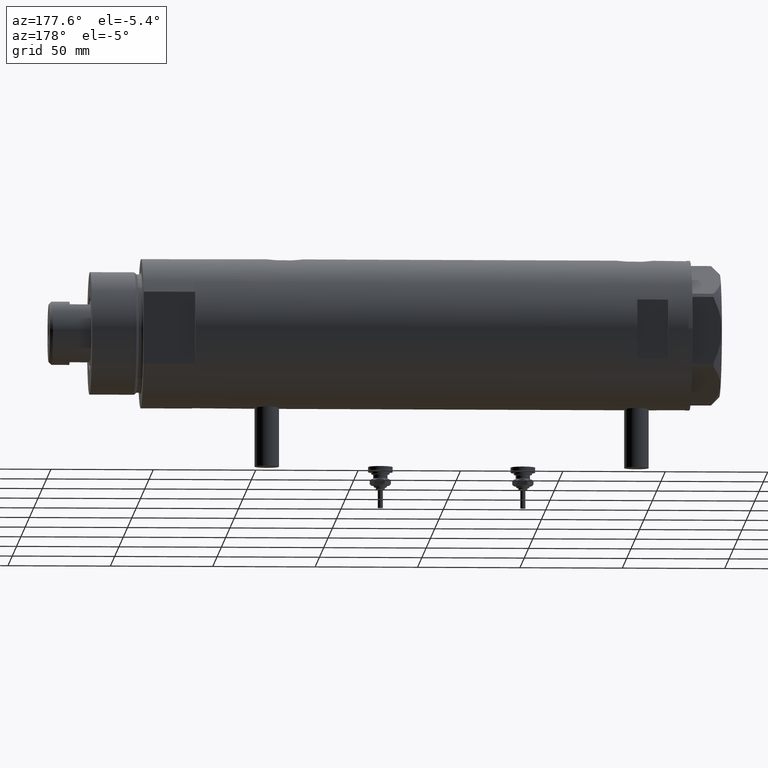
[diagram: clean part render]
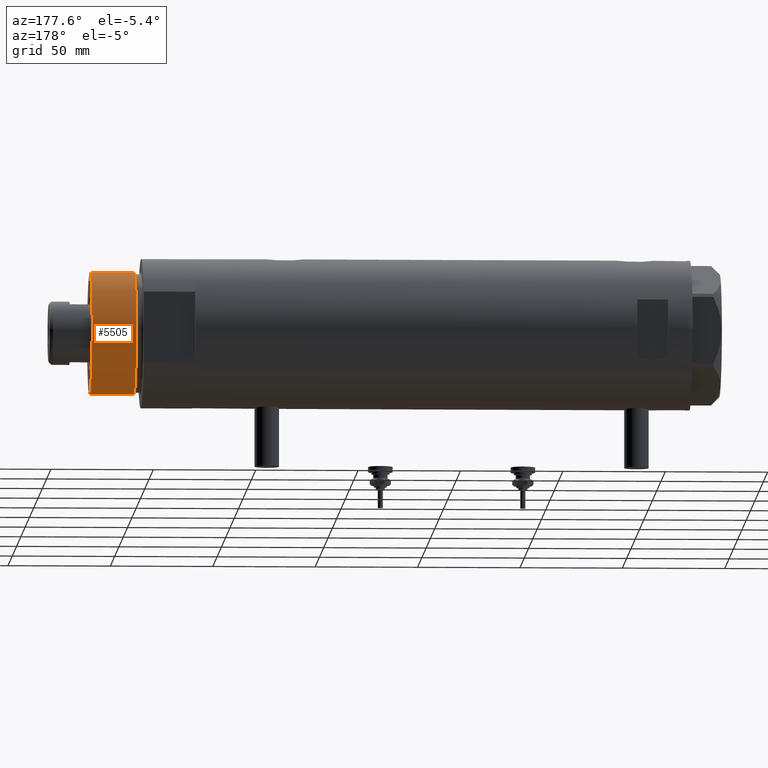
[diagram: same view with one face highlighted and labeled with its STEP entity id]
A machine part, auxiliary view. The second image highlights one B-rep face of the part: STEP entity #5505.
In plain terms, the highlighted cylindrical surface (partial cylindrical patch) has radius 30 mm, axis along (-1, -0, 0).
Its self-contained STEP definition (entity closure, byte-faithful):
#132 = CARTESIAN_POINT ( 'NONE',  ( 30.00000000000000000, 3.673940397442058389E-15, 28.57384048104054486 ) ) ;
#154 = VERTEX_POINT ( 'NONE', #3628 ) ;
#380 = CIRCLE ( 'NONE', #1042, 30.00000000000000000 ) ;
#632 = CARTESIAN_POINT ( 'NONE',  ( 0.000000000000000000, 0.000000000000000000, 50.19999999999999574 ) ) ;
#673 = DIRECTION ( 'NONE',  ( -0.000000000000000000, -0.000000000000000000, -1.000000000000000000 ) ) ;
#833 = CARTESIAN_POINT ( 'NONE',  ( 30.00000000000000000, 3.673940397442058389E-15, 50.19999999999999574 ) ) ;
#1042 = AXIS2_PLACEMENT_3D ( 'NONE', #4285, #4832, #1598 ) ;
#1063 = AXIS2_PLACEMENT_3D ( 'NONE', #5264, #673, #4414 ) ;
#1065 = EDGE_LOOP ( 'NONE', ( #2960, #1161, #3092, #2927 ) ) ;
#1161 = ORIENTED_EDGE ( 'NONE', *, *, #4653, .T. ) ;
#1220 = AXIS2_PLACEMENT_3D ( 'NONE', #632, #2460, #3387 ) ;
#1350 = LINE ( 'NONE', #833, #4791 ) ;
#1426 = VERTEX_POINT ( 'NONE', #3889 ) ;
#1552 = EDGE_CURVE ( 'NONE', #1426, #3922, #3785, .T. ) ;
#1598 = DIRECTION ( 'NONE',  ( 1.000000000000000000, 0.000000000000000000, 0.000000000000000000 ) ) ;
#2222 = DIRECTION ( 'NONE',  ( -0.000000000000000000, -0.000000000000000000, -1.000000000000000000 ) ) ;
#2422 = CARTESIAN_POINT ( 'NONE',  ( -30.00000000000000000, 0.000000000000000000, 50.19999999999999574 ) ) ;
#2460 = DIRECTION ( 'NONE',  ( 0.000000000000000000, 0.000000000000000000, 1.000000000000000000 ) ) ;
#2927 = ORIENTED_EDGE ( 'NONE', *, *, #3764, .F. ) ;
#2960 = ORIENTED_EDGE ( 'NONE', *, *, #1552, .F. ) ;
#3092 = ORIENTED_EDGE ( 'NONE', *, *, #3182, .T. ) ;
#3182 = EDGE_CURVE ( 'NONE', #5718, #154, #380, .T. ) ;
#3387 = DIRECTION ( 'NONE',  ( 1.000000000000000000, 0.000000000000000000, 0.000000000000000000 ) ) ;
#3394 = FACE_OUTER_BOUND ( 'NONE', #1065, .T. ) ;
#3628 = CARTESIAN_POINT ( 'NONE',  ( -30.00000000000000000, 0.000000000000000000, 28.57384048104054486 ) ) ;
#3670 = CARTESIAN_POINT ( 'NONE',  ( -30.00000000000000000, 0.000000000000000000, 50.19999999999999574 ) ) ;
#3764 = EDGE_CURVE ( 'NONE', #3922, #154, #4143, .T. ) ;
#3785 = CIRCLE ( 'NONE', #1220, 30.00000000000000000 ) ;
#3889 = CARTESIAN_POINT ( 'NONE',  ( 30.00000000000000000, 3.673940397442058389E-15, 50.19999999999999574 ) ) ;
#3922 = VERTEX_POINT ( 'NONE', #2422 ) ;
#4143 = LINE ( 'NONE', #3670, #4192 ) ;
#4192 = VECTOR ( 'NONE', #4576, 1000.000000000000000 ) ;
#4285 = CARTESIAN_POINT ( 'NONE',  ( 0.000000000000000000, 0.000000000000000000, 28.57384048104054486 ) ) ;
#4414 = DIRECTION ( 'NONE',  ( -1.000000000000000000, 0.000000000000000000, 0.000000000000000000 ) ) ;
#4576 = DIRECTION ( 'NONE',  ( -0.000000000000000000, -0.000000000000000000, -1.000000000000000000 ) ) ;
#4653 = EDGE_CURVE ( 'NONE', #1426, #5718, #1350, .T. ) ;
#4791 = VECTOR ( 'NONE', #2222, 1000.000000000000000 ) ;
#4832 = DIRECTION ( 'NONE',  ( -0.000000000000000000, -0.000000000000000000, 1.000000000000000000 ) ) ;
#5230 = CYLINDRICAL_SURFACE ( 'NONE', #1063, 30.00000000000000000 ) ;
#5264 = CARTESIAN_POINT ( 'NONE',  ( 0.000000000000000000, 0.000000000000000000, 50.19999999999999574 ) ) ;
#5505 = ADVANCED_FACE ( 'NONE', ( #3394 ), #5230, .T. ) ;
#5718 = VERTEX_POINT ( 'NONE', #132 ) ;